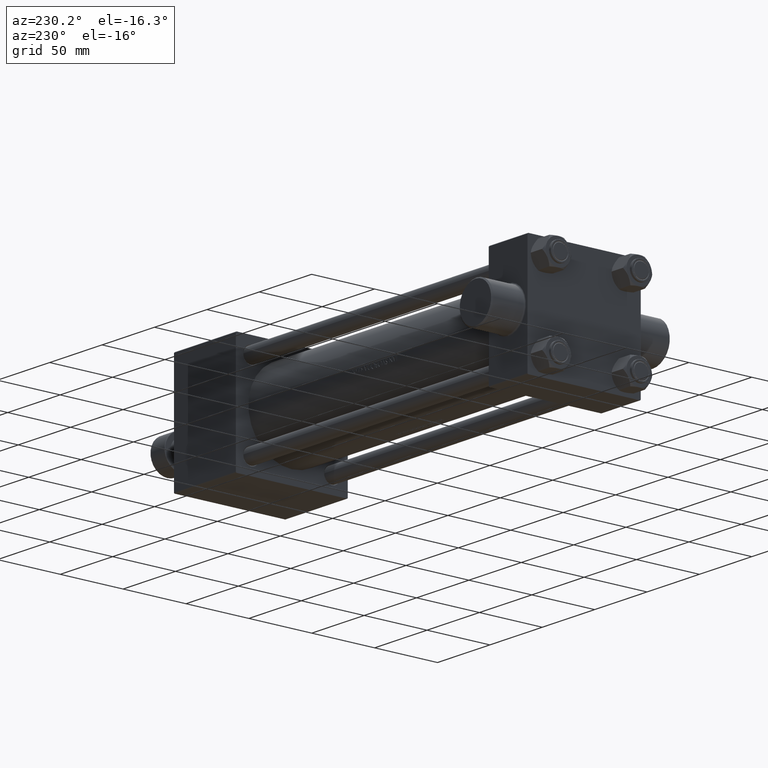
[diagram: clean part render]
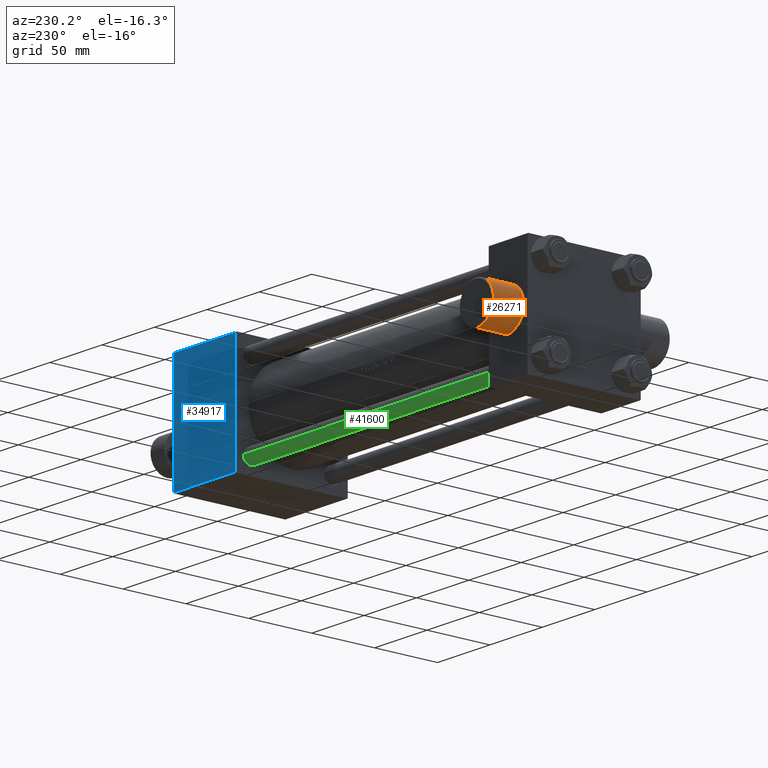
[diagram: same view with three faces highlighted in distinct colors, each labeled with its STEP entity id]
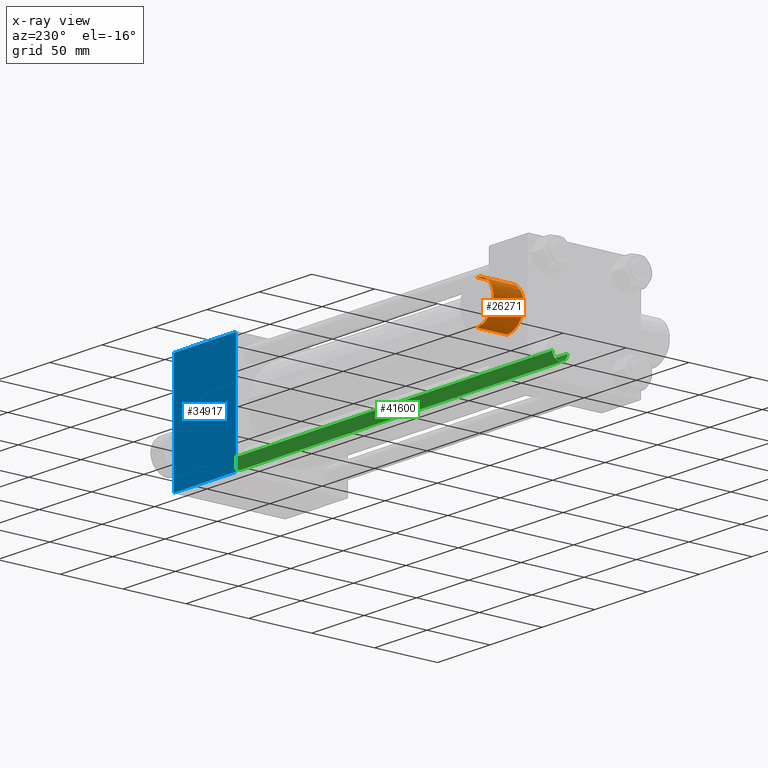
[diagram: x-ray of the same camera — body ghosted, the three highlighted faces saturated]
A machine part, auxiliary view with three faces highlighted in distinct colors.
The next image is the same camera in x-ray (body ghosted, the three faces saturated) — at least one of them is partly hidden behind the body in this view.
Their STEP definitions:

[orange] entity #26271 — the highlighted cylindrical surface (edge-blend (fillet) strip) has radius 16 mm, axis along (0, -1, 0).
#1352 = ORIENTED_EDGE ( 'NONE', *, *, #17244, .T. ) ;
#1573 = ORIENTED_EDGE ( 'NONE', *, *, #39331, .T. ) ;
#2677 = AXIS2_PLACEMENT_3D ( 'NONE', #5343, #19318, #37514 ) ;
#3545 = CARTESIAN_POINT ( 'NONE',  ( 18.50000000000000355, 46.00000000000000000, 16.00000000000000355 ) ) ;
#5343 = CARTESIAN_POINT ( 'NONE',  ( 18.50000000000000000, 45.99999999999998579, -3.556183125752453755E-15 ) ) ;
#8368 = CARTESIAN_POINT ( 'NONE',  ( 18.50000000000000000, 69.99999999999995737, -5.637851296924619901E-15 ) ) ;
#8678 = DIRECTION ( 'NONE',  ( 0.000000000000000000, 0.000000000000000000, -1.000000000000000000 ) ) ;
#10046 = VERTEX_POINT ( 'NONE', #30094 ) ;
#11287 = CARTESIAN_POINT ( 'NONE',  ( 18.50000000000000355, 45.99999999999998579, 16.00000000000000355 ) ) ;
#11397 = LINE ( 'NONE', #36702, #45014 ) ;
#12438 = ORIENTED_EDGE ( 'NONE', *, *, #24607, .F. ) ;
#13760 = EDGE_CURVE ( 'NONE', #38553, #22945, #14841, .T. ) ;
#14841 = CIRCLE ( 'NONE', #20897, 16.00000000000000711 ) ;
#15148 = CYLINDRICAL_SURFACE ( 'NONE', #35602, 16.00000000000000711 ) ;
#17244 = EDGE_CURVE ( 'NONE', #22945, #10046, #11397, .T. ) ;
#17379 = CARTESIAN_POINT ( 'NONE',  ( 18.50000000000000000, 69.99999999999995737, -16.00000000000001421 ) ) ;
#17755 = CIRCLE ( 'NONE', #2677, 16.00000000000000711 ) ;
#17965 = DIRECTION ( 'NONE',  ( -0.000000000000000000, -1.000000000000000000, 8.673617379884036705E-17 ) ) ;
#19318 = DIRECTION ( 'NONE',  ( -0.000000000000000000, 1.000000000000000000, 0.000000000000000000 ) ) ;
#20897 = AXIS2_PLACEMENT_3D ( 'NONE', #8368, #37001, #33214 ) ;
#22945 = VERTEX_POINT ( 'NONE', #17379 ) ;
#24607 = EDGE_CURVE ( 'NONE', #38553, #28402, #35937, .T. ) ;
#25836 = DIRECTION ( 'NONE',  ( -0.000000000000000000, -1.000000000000000000, 8.673617379884036705E-17 ) ) ;
#26271 = ADVANCED_FACE ( 'NONE', ( #43518 ), #15148, .T. ) ;
#28402 = VERTEX_POINT ( 'NONE', #11287 ) ;
#30094 = CARTESIAN_POINT ( 'NONE',  ( 18.50000000000000000, 45.99999999999998579, -16.00000000000001066 ) ) ;
#30582 = EDGE_LOOP ( 'NONE', ( #12438, #31091, #1352, #1573 ) ) ;
#31091 = ORIENTED_EDGE ( 'NONE', *, *, #13760, .T. ) ;
#32229 = CARTESIAN_POINT ( 'NONE',  ( 18.50000000000000355, 69.99999999999995737, 16.00000000000000000 ) ) ;
#33214 = DIRECTION ( 'NONE',  ( 0.000000000000000000, 0.000000000000000000, 1.000000000000000000 ) ) ;
#35602 = AXIS2_PLACEMENT_3D ( 'NONE', #41073, #43280, #8678 ) ;
#35937 = LINE ( 'NONE', #3545, #44470 ) ;
#36702 = CARTESIAN_POINT ( 'NONE',  ( 18.50000000000000000, 46.00000000000000000, -16.00000000000001066 ) ) ;
#37001 = DIRECTION ( 'NONE',  ( -0.000000000000000000, -1.000000000000000000, 8.673617379883977540E-17 ) ) ;
#37514 = DIRECTION ( 'NONE',  ( 0.000000000000000000, 0.000000000000000000, 1.000000000000000000 ) ) ;
#38553 = VERTEX_POINT ( 'NONE', #32229 ) ;
#39331 = EDGE_CURVE ( 'NONE', #10046, #28402, #17755, .T. ) ;
#41073 = CARTESIAN_POINT ( 'NONE',  ( 18.50000000000000000, 46.00000000000000000, -3.556183125752455332E-15 ) ) ;
#43280 = DIRECTION ( 'NONE',  ( -0.000000000000000000, -1.000000000000000000, 8.673617379884036705E-17 ) ) ;
#43518 = FACE_OUTER_BOUND ( 'NONE', #30582, .T. ) ;
#44470 = VECTOR ( 'NONE', #17965, 1000.000000000000000 ) ;
#45014 = VECTOR ( 'NONE', #25836, 1000.000000000000000 ) ;

[blue] entity #34917 — the highlighted planar face has unit normal (0, 1, 0).
#472 = DIRECTION ( 'NONE',  ( -0.000000000000000000, 1.000000000000000000, 0.000000000000000000 ) ) ;
#2639 = VERTEX_POINT ( 'NONE', #4049 ) ;
#3575 = EDGE_CURVE ( 'NONE', #14280, #39890, #18549, .T. ) ;
#4049 = CARTESIAN_POINT ( 'NONE',  ( 337.9999999999999432, 44.50000000000000711, 44.50000000000000711 ) ) ;
#4440 = DIRECTION ( 'NONE',  ( 0.000000000000000000, 0.000000000000000000, -1.000000000000000000 ) ) ;
#7557 = CARTESIAN_POINT ( 'NONE',  ( 337.9999999999999432, 44.50000000000000711, 45.00000000000000711 ) ) ;
#7905 = DIRECTION ( 'NONE',  ( 0.000000000000000000, 0.000000000000000000, -1.000000000000000000 ) ) ;
#8478 = CARTESIAN_POINT ( 'NONE',  ( 278.9999999999999432, 44.50000000000000711, 44.50000000000000711 ) ) ;
#9125 = ORIENTED_EDGE ( 'NONE', *, *, #29133, .T. ) ;
#10128 = LINE ( 'NONE', #45352, #33403 ) ;
#11466 = LINE ( 'NONE', #14563, #34219 ) ;
#12006 = VERTEX_POINT ( 'NONE', #8478 ) ;
#14280 = VERTEX_POINT ( 'NONE', #23574 ) ;
#14563 = CARTESIAN_POINT ( 'NONE',  ( 337.9999999999999432, 44.50000000000000711, 45.00000000000000711 ) ) ;
#18549 = LINE ( 'NONE', #32501, #36441 ) ;
#19613 = ORIENTED_EDGE ( 'NONE', *, *, #31416, .T. ) ;
#19812 = LINE ( 'NONE', #34217, #41192 ) ;
#23574 = CARTESIAN_POINT ( 'NONE',  ( 337.9999999999999432, 44.50000000000000711, -44.49999999999997868 ) ) ;
#25314 = DIRECTION ( 'NONE',  ( 0.000000000000000000, -0.000000000000000000, 1.000000000000000000 ) ) ;
#28081 = ORIENTED_EDGE ( 'NONE', *, *, #3575, .T. ) ;
#29133 = EDGE_CURVE ( 'NONE', #12006, #2639, #10128, .T. ) ;
#29657 = DIRECTION ( 'NONE',  ( -1.000000000000000000, 0.000000000000000000, 0.000000000000000000 ) ) ;
#31416 = EDGE_CURVE ( 'NONE', #2639, #14280, #11466, .T. ) ;
#32243 = CARTESIAN_POINT ( 'NONE',  ( 278.9999999999999432, 44.50000000000000711, -44.49999999999997868 ) ) ;
#32501 = CARTESIAN_POINT ( 'NONE',  ( 337.9999999999999432, 44.50000000000000711, -44.50000000000000711 ) ) ;
#33403 = VECTOR ( 'NONE', #42514, 1000.000000000000000 ) ;
#34217 = CARTESIAN_POINT ( 'NONE',  ( 278.9999999999999432, 44.50000000000000711, 45.00000000000000711 ) ) ;
#34219 = VECTOR ( 'NONE', #7905, 1000.000000000000000 ) ;
#34917 = ADVANCED_FACE ( 'NONE', ( #46574 ), #39715, .T. ) ;
#36441 = VECTOR ( 'NONE', #29657, 1000.000000000000000 ) ;
#39715 = PLANE ( 'NONE',  #44893 ) ;
#39890 = VERTEX_POINT ( 'NONE', #32243 ) ;
#40486 = EDGE_CURVE ( 'NONE', #12006, #39890, #19812, .T. ) ;
#41192 = VECTOR ( 'NONE', #4440, 1000.000000000000000 ) ;
#42514 = DIRECTION ( 'NONE',  ( 1.000000000000000000, 0.000000000000000000, 0.000000000000000000 ) ) ;
#42554 = EDGE_LOOP ( 'NONE', ( #43183, #9125, #19613, #28081 ) ) ;
#43183 = ORIENTED_EDGE ( 'NONE', *, *, #40486, .F. ) ;
#44893 = AXIS2_PLACEMENT_3D ( 'NONE', #7557, #472, #25314 ) ;
#45352 = CARTESIAN_POINT ( 'NONE',  ( 337.9999999999999432, 44.50000000000000711, 44.50000000000000711 ) ) ;
#46574 = FACE_OUTER_BOUND ( 'NONE', #42554, .T. ) ;

[green] entity #41600 — the highlighted cylindrical surface (edge-blend (fillet) strip) has radius 6 mm, axis along (1, 0, 0).
#66 = VERTEX_POINT ( 'NONE', #8984 ) ;
#3204 = DIRECTION ( 'NONE',  ( -0.000000000000000000, -0.000000000000000000, -1.000000000000000000 ) ) ;
#3644 = DIRECTION ( 'NONE',  ( -0.000000000000000000, -0.000000000000000000, 1.000000000000000000 ) ) ;
#5873 = CARTESIAN_POINT ( 'NONE',  ( 6.000000000000000888, 7.347880794884120722E-16, 307.4999999999999432 ) ) ;
#5915 = EDGE_CURVE ( 'NONE', #46447, #26717, #16872, .T. ) ;
#6552 = CYLINDRICAL_SURFACE ( 'NONE', #41975, 6.000000000000000888 ) ;
#8984 = CARTESIAN_POINT ( 'NONE',  ( -6.000000000000000888, 0.000000000000000000, 307.4999999999999432 ) ) ;
#9300 = DIRECTION ( 'NONE',  ( 1.000000000000000000, 0.000000000000000000, 0.000000000000000000 ) ) ;
#9558 = AXIS2_PLACEMENT_3D ( 'NONE', #23501, #26821, #9300 ) ;
#9865 = FACE_OUTER_BOUND ( 'NONE', #35219, .T. ) ;
#10059 = LINE ( 'NONE', #31817, #41961 ) ;
#10505 = CARTESIAN_POINT ( 'NONE',  ( 0.000000000000000000, 0.000000000000000000, 0.5000000000000559552 ) ) ;
#12061 = VERTEX_POINT ( 'NONE', #5873 ) ;
#13093 = AXIS2_PLACEMENT_3D ( 'NONE', #10505, #3644, #21858 ) ;
#13413 = ORIENTED_EDGE ( 'NONE', *, *, #5915, .T. ) ;
#14892 = CARTESIAN_POINT ( 'NONE',  ( 6.000000000000000888, 7.347880794884120722E-16, 308.0000000000000000 ) ) ;
#16809 = EDGE_CURVE ( 'NONE', #66, #46447, #10059, .T. ) ;
#16872 = CIRCLE ( 'NONE', #13093, 6.000000000000000888 ) ;
#16974 = EDGE_CURVE ( 'NONE', #12061, #66, #43512, .T. ) ;
#17434 = DIRECTION ( 'NONE',  ( -0.000000000000000000, -0.000000000000000000, -1.000000000000000000 ) ) ;
#20996 = CARTESIAN_POINT ( 'NONE',  ( 0.000000000000000000, 0.000000000000000000, 308.0000000000000000 ) ) ;
#21858 = DIRECTION ( 'NONE',  ( 1.000000000000000000, 0.000000000000000000, 0.000000000000000000 ) ) ;
#23344 = ORIENTED_EDGE ( 'NONE', *, *, #44115, .F. ) ;
#23501 = CARTESIAN_POINT ( 'NONE',  ( 0.000000000000000000, 0.000000000000000000, 307.4999999999999432 ) ) ;
#25997 = LINE ( 'NONE', #14892, #30711 ) ;
#26717 = VERTEX_POINT ( 'NONE', #42186 ) ;
#26821 = DIRECTION ( 'NONE',  ( 0.000000000000000000, 0.000000000000000000, -1.000000000000000000 ) ) ;
#27630 = ORIENTED_EDGE ( 'NONE', *, *, #16809, .T. ) ;
#29313 = DIRECTION ( 'NONE',  ( -0.000000000000000000, -0.000000000000000000, -1.000000000000000000 ) ) ;
#30711 = VECTOR ( 'NONE', #29313, 1000.000000000000000 ) ;
#31817 = CARTESIAN_POINT ( 'NONE',  ( -6.000000000000000888, 0.000000000000000000, 308.0000000000000000 ) ) ;
#31853 = DIRECTION ( 'NONE',  ( -1.000000000000000000, 0.000000000000000000, 0.000000000000000000 ) ) ;
#35219 = EDGE_LOOP ( 'NONE', ( #23344, #40882, #27630, #13413 ) ) ;
#40882 = ORIENTED_EDGE ( 'NONE', *, *, #16974, .T. ) ;
#41600 = ADVANCED_FACE ( 'NONE', ( #9865 ), #6552, .T. ) ;
#41961 = VECTOR ( 'NONE', #3204, 1000.000000000000000 ) ;
#41975 = AXIS2_PLACEMENT_3D ( 'NONE', #20996, #17434, #31853 ) ;
#42186 = CARTESIAN_POINT ( 'NONE',  ( 6.000000000000000888, 7.347880794884120722E-16, 0.5000000000000559552 ) ) ;
#43512 = CIRCLE ( 'NONE', #9558, 6.000000000000000888 ) ;
#44115 = EDGE_CURVE ( 'NONE', #12061, #26717, #25997, .T. ) ;
#46447 = VERTEX_POINT ( 'NONE', #46456 ) ;
#46456 = CARTESIAN_POINT ( 'NONE',  ( -6.000000000000000888, 0.000000000000000000, 0.5000000000000559552 ) ) ;